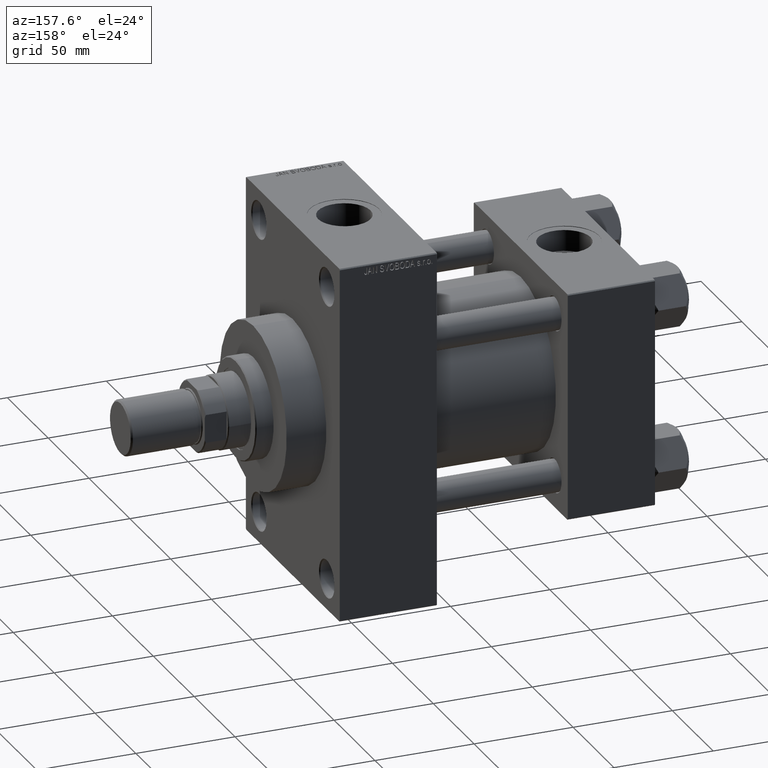
[diagram: clean part render]
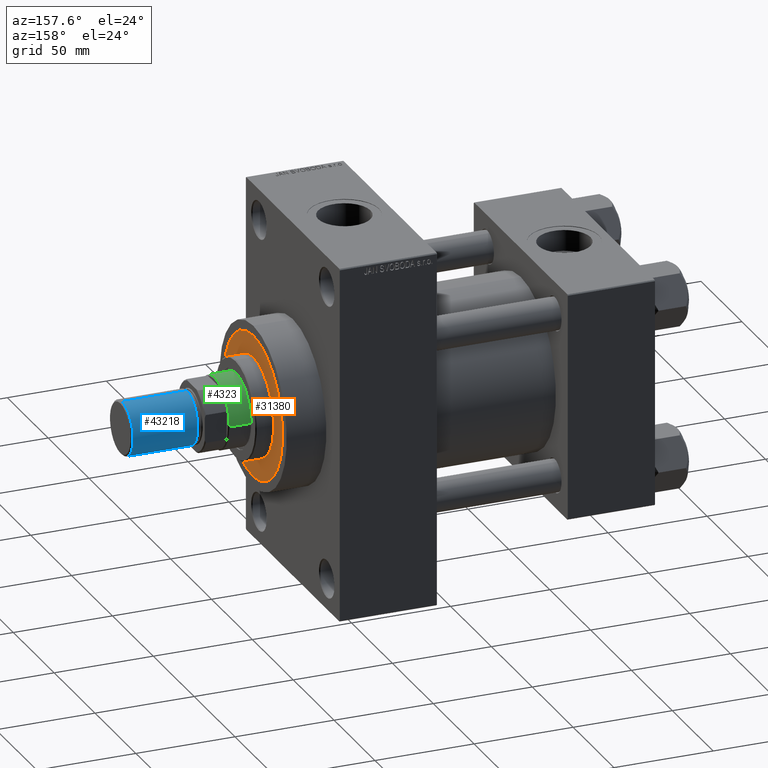
[diagram: same view with three faces highlighted in distinct colors, each labeled with its STEP entity id]
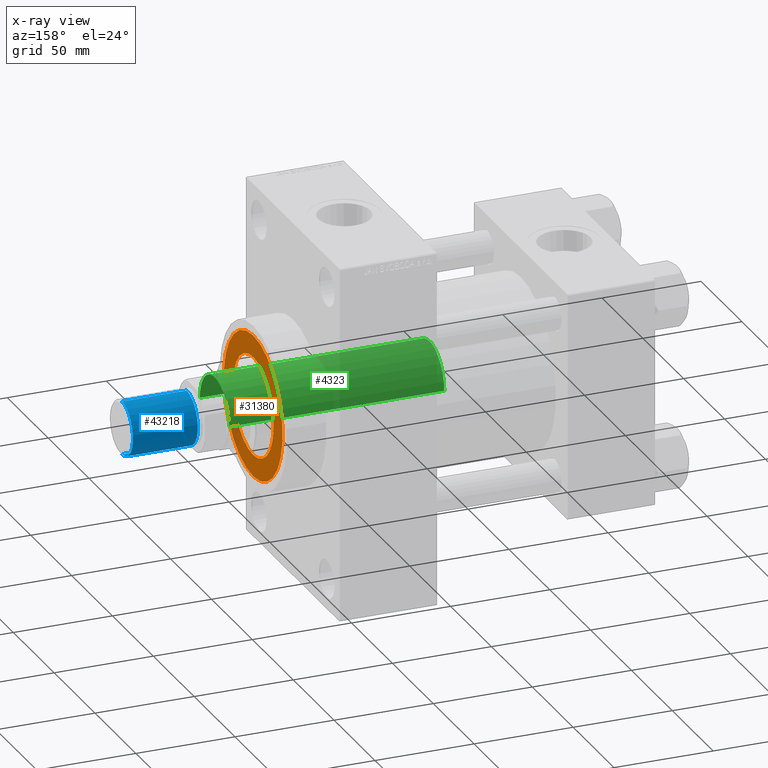
[diagram: x-ray of the same camera — body ghosted, the three highlighted faces saturated]
A machine part, auxiliary view with three faces highlighted in distinct colors.
The next image is the same camera in x-ray (body ghosted, the three faces saturated) — at least one of them is partly hidden behind the body in this view.
Their STEP definitions:

[orange] entity #31380 — the highlighted planar face has unit normal (1, -0, -0).
#1510 = FACE_BOUND ( 'NONE', #47403, .T. ) ;
#1616 = AXIS2_PLACEMENT_3D ( 'NONE', #18687, #7276, #10465 ) ;
#2077 = EDGE_LOOP ( 'NONE', ( #34125, #34149 ) ) ;
#2237 = EDGE_CURVE ( 'NONE', #43794, #43035, #3136, .T. ) ;
#3136 = CIRCLE ( 'NONE', #1616, 36.00000000000000000 ) ;
#3507 = EDGE_CURVE ( 'NONE', #43035, #43794, #33512, .T. ) ;
#6301 = DIRECTION ( 'NONE',  ( 0.000000000000000000, 0.000000000000000000, 1.000000000000000000 ) ) ;
#7276 = DIRECTION ( 'NONE',  ( 0.000000000000000000, 0.000000000000000000, 1.000000000000000000 ) ) ;
#8594 = CARTESIAN_POINT ( 'NONE',  ( 0.000000000000000000, 0.000000000000000000, 43.25999999999999801 ) ) ;
#9964 = DIRECTION ( 'NONE',  ( 1.000000000000000000, 0.000000000000000000, 0.000000000000000000 ) ) ;
#10465 = DIRECTION ( 'NONE',  ( 1.000000000000000000, 0.000000000000000000, 0.000000000000000000 ) ) ;
#11316 = EDGE_CURVE ( 'NONE', #44570, #37945, #15926, .T. ) ;
#12397 = CARTESIAN_POINT ( 'NONE',  ( 25.00000000000000000, 3.061616997868383043E-15, 43.25999999999999801 ) ) ;
#12479 = DIRECTION ( 'NONE',  ( 1.000000000000000000, 0.000000000000000000, -0.000000000000000000 ) ) ;
#14541 = AXIS2_PLACEMENT_3D ( 'NONE', #8594, #31937, #12479 ) ;
#15926 = CIRCLE ( 'NONE', #43137, 25.00000000000000000 ) ;
#16344 = PLANE ( 'NONE',  #14541 ) ;
#16673 = CARTESIAN_POINT ( 'NONE',  ( 36.00000000000000000, 4.408728476930470856E-15, 43.25999999999999801 ) ) ;
#16941 = EDGE_CURVE ( 'NONE', #37945, #44570, #35992, .T. ) ;
#17946 = CARTESIAN_POINT ( 'NONE',  ( 0.000000000000000000, 0.000000000000000000, 43.25999999999999801 ) ) ;
#18687 = CARTESIAN_POINT ( 'NONE',  ( 0.000000000000000000, 0.000000000000000000, 43.25999999999999801 ) ) ;
#23558 = DIRECTION ( 'NONE',  ( 1.000000000000000000, 0.000000000000000000, 0.000000000000000000 ) ) ;
#26102 = ORIENTED_EDGE ( 'NONE', *, *, #16941, .F. ) ;
#28220 = CARTESIAN_POINT ( 'NONE',  ( 0.000000000000000000, 0.000000000000000000, 43.25999999999999801 ) ) ;
#29630 = AXIS2_PLACEMENT_3D ( 'NONE', #28220, #39637, #42571 ) ;
#30393 = CARTESIAN_POINT ( 'NONE',  ( 0.000000000000000000, 0.000000000000000000, 43.25999999999999801 ) ) ;
#31380 = ADVANCED_FACE ( 'NONE', ( #1510, #31460 ), #16344, .T. ) ;
#31460 = FACE_OUTER_BOUND ( 'NONE', #2077, .T. ) ;
#31937 = DIRECTION ( 'NONE',  ( 0.000000000000000000, 0.000000000000000000, 1.000000000000000000 ) ) ;
#32023 = CARTESIAN_POINT ( 'NONE',  ( -36.00000000000000000, 0.000000000000000000, 43.25999999999999801 ) ) ;
#33512 = CIRCLE ( 'NONE', #29630, 36.00000000000000000 ) ;
#34029 = DIRECTION ( 'NONE',  ( 0.000000000000000000, 0.000000000000000000, 1.000000000000000000 ) ) ;
#34125 = ORIENTED_EDGE ( 'NONE', *, *, #3507, .T. ) ;
#34149 = ORIENTED_EDGE ( 'NONE', *, *, #2237, .T. ) ;
#35992 = CIRCLE ( 'NONE', #45326, 25.00000000000000000 ) ;
#37945 = VERTEX_POINT ( 'NONE', #46569 ) ;
#39637 = DIRECTION ( 'NONE',  ( 0.000000000000000000, 0.000000000000000000, 1.000000000000000000 ) ) ;
#42198 = ORIENTED_EDGE ( 'NONE', *, *, #11316, .F. ) ;
#42571 = DIRECTION ( 'NONE',  ( 1.000000000000000000, 0.000000000000000000, 0.000000000000000000 ) ) ;
#43035 = VERTEX_POINT ( 'NONE', #32023 ) ;
#43137 = AXIS2_PLACEMENT_3D ( 'NONE', #30393, #34029, #23558 ) ;
#43794 = VERTEX_POINT ( 'NONE', #16673 ) ;
#44570 = VERTEX_POINT ( 'NONE', #12397 ) ;
#45326 = AXIS2_PLACEMENT_3D ( 'NONE', #17946, #6301, #9964 ) ;
#46569 = CARTESIAN_POINT ( 'NONE',  ( -25.00000000000000000, 0.000000000000000000, 43.25999999999999801 ) ) ;
#47403 = EDGE_LOOP ( 'NONE', ( #26102, #42198 ) ) ;

[blue] entity #43218 — the highlighted cylindrical surface (edge-blend (fillet) strip) has radius 13.5 mm, axis along (1, -0, -0).
#1316 = CARTESIAN_POINT ( 'NONE',  ( 13.50000000000000000, 1.653273178848926867E-15, 0.7999999999999951594 ) ) ;
#2646 = CARTESIAN_POINT ( 'NONE',  ( -13.50000000000000000, 0.000000000000000000, 33.50000000000000000 ) ) ;
#5126 = VERTEX_POINT ( 'NONE', #42465 ) ;
#5925 = ORIENTED_EDGE ( 'NONE', *, *, #6640, .T. ) ;
#6640 = EDGE_CURVE ( 'NONE', #5126, #34829, #23199, .T. ) ;
#9098 = CARTESIAN_POINT ( 'NONE',  ( 0.000000000000000000, 0.000000000000000000, 33.50000000000000000 ) ) ;
#9596 = CARTESIAN_POINT ( 'NONE',  ( 0.000000000000000000, 0.000000000000000000, 0.7999999999999951594 ) ) ;
#9733 = CARTESIAN_POINT ( 'NONE',  ( -13.50000000000000000, 0.000000000000000000, 33.50000000000000000 ) ) ;
#12357 = AXIS2_PLACEMENT_3D ( 'NONE', #9596, #32458, #47285 ) ;
#13844 = DIRECTION ( 'NONE',  ( -0.000000000000000000, -0.000000000000000000, -1.000000000000000000 ) ) ;
#14119 = DIRECTION ( 'NONE',  ( 1.000000000000000000, 0.000000000000000000, 0.000000000000000000 ) ) ;
#15894 = DIRECTION ( 'NONE',  ( -0.000000000000000000, -0.000000000000000000, -1.000000000000000000 ) ) ;
#16841 = CYLINDRICAL_SURFACE ( 'NONE', #29371, 13.50000000000000000 ) ;
#17006 = ORIENTED_EDGE ( 'NONE', *, *, #37936, .T. ) ;
#17389 = EDGE_CURVE ( 'NONE', #21723, #46306, #32123, .T. ) ;
#18104 = VECTOR ( 'NONE', #13844, 1000.000000000000000 ) ;
#20263 = DIRECTION ( 'NONE',  ( -1.000000000000000000, 0.000000000000000000, 0.000000000000000000 ) ) ;
#21723 = VERTEX_POINT ( 'NONE', #9733 ) ;
#23199 = LINE ( 'NONE', #38049, #33616 ) ;
#25652 = CIRCLE ( 'NONE', #12357, 13.50000000000000000 ) ;
#26701 = ORIENTED_EDGE ( 'NONE', *, *, #17389, .F. ) ;
#28123 = CARTESIAN_POINT ( 'NONE',  ( -13.50000000000000000, 0.000000000000000000, 0.7999999999999951594 ) ) ;
#29371 = AXIS2_PLACEMENT_3D ( 'NONE', #9098, #31253, #20263 ) ;
#29482 = AXIS2_PLACEMENT_3D ( 'NONE', #36048, #35568, #14119 ) ;
#31253 = DIRECTION ( 'NONE',  ( -0.000000000000000000, -0.000000000000000000, -1.000000000000000000 ) ) ;
#32123 = LINE ( 'NONE', #2646, #18104 ) ;
#32458 = DIRECTION ( 'NONE',  ( -0.000000000000000000, -0.000000000000000000, 1.000000000000000000 ) ) ;
#32613 = EDGE_LOOP ( 'NONE', ( #40571, #5925, #17006, #26701 ) ) ;
#33616 = VECTOR ( 'NONE', #15894, 1000.000000000000000 ) ;
#34136 = CIRCLE ( 'NONE', #29482, 13.50000000000000000 ) ;
#34829 = VERTEX_POINT ( 'NONE', #1316 ) ;
#35568 = DIRECTION ( 'NONE',  ( 0.000000000000000000, 0.000000000000000000, 1.000000000000000000 ) ) ;
#36048 = CARTESIAN_POINT ( 'NONE',  ( 0.000000000000000000, 0.000000000000000000, 33.50000000000000000 ) ) ;
#36134 = EDGE_CURVE ( 'NONE', #5126, #21723, #34136, .T. ) ;
#37936 = EDGE_CURVE ( 'NONE', #34829, #46306, #25652, .T. ) ;
#38049 = CARTESIAN_POINT ( 'NONE',  ( 13.50000000000000000, 1.653273178848926867E-15, 33.50000000000000000 ) ) ;
#40571 = ORIENTED_EDGE ( 'NONE', *, *, #36134, .F. ) ;
#42465 = CARTESIAN_POINT ( 'NONE',  ( 13.50000000000000000, 1.653273178848926867E-15, 33.50000000000000000 ) ) ;
#43143 = FACE_OUTER_BOUND ( 'NONE', #32613, .T. ) ;
#43218 = ADVANCED_FACE ( 'NONE', ( #43143 ), #16841, .T. ) ;
#46306 = VERTEX_POINT ( 'NONE', #28123 ) ;
#47285 = DIRECTION ( 'NONE',  ( 1.000000000000000000, 0.000000000000000000, 0.000000000000000000 ) ) ;

[green] entity #4323 — the highlighted cylindrical surface (partial cylindrical patch) has radius 18 mm, axis along (-1, 0, 0).
#4323 = ADVANCED_FACE ( 'NONE', ( #27397 ), #42936, .T. ) ;
#4639 = VERTEX_POINT ( 'NONE', #35823 ) ;
#5043 = EDGE_CURVE ( 'NONE', #14605, #38156, #14884, .T. ) ;
#10440 = LINE ( 'NONE', #29893, #46990 ) ;
#11998 = CARTESIAN_POINT ( 'NONE',  ( 0.000000000000000000, 0.000000000000000000, 154.4999999999999716 ) ) ;
#12782 = CARTESIAN_POINT ( 'NONE',  ( 0.000000000000000000, 0.000000000000000000, 155.0000000000000000 ) ) ;
#14605 = VERTEX_POINT ( 'NONE', #41546 ) ;
#14884 = CIRCLE ( 'NONE', #38243, 18.00000000000000000 ) ;
#15949 = DIRECTION ( 'NONE',  ( 0.000000000000000000, 0.000000000000000000, 1.000000000000000000 ) ) ;
#16040 = ORIENTED_EDGE ( 'NONE', *, *, #5043, .T. ) ;
#17119 = DIRECTION ( 'NONE',  ( -0.000000000000000000, -0.000000000000000000, -1.000000000000000000 ) ) ;
#18522 = CIRCLE ( 'NONE', #23248, 18.00000000000000000 ) ;
#19343 = ORIENTED_EDGE ( 'NONE', *, *, #20963, .T. ) ;
#20335 = AXIS2_PLACEMENT_3D ( 'NONE', #12782, #17119, #43179 ) ;
#20788 = ORIENTED_EDGE ( 'NONE', *, *, #24061, .F. ) ;
#20963 = EDGE_CURVE ( 'NONE', #4639, #14605, #10440, .T. ) ;
#23163 = CARTESIAN_POINT ( 'NONE',  ( 18.00000000000000000, 2.204364238465235428E-15, 46.00000000000000000 ) ) ;
#23248 = AXIS2_PLACEMENT_3D ( 'NONE', #11998, #34875, #31235 ) ;
#23282 = ORIENTED_EDGE ( 'NONE', *, *, #45381, .T. ) ;
#24061 = EDGE_CURVE ( 'NONE', #27437, #38156, #37994, .T. ) ;
#27397 = FACE_OUTER_BOUND ( 'NONE', #46386, .T. ) ;
#27437 = VERTEX_POINT ( 'NONE', #30969 ) ;
#29741 = CARTESIAN_POINT ( 'NONE',  ( 18.00000000000000000, 2.204364238465235428E-15, 155.0000000000000000 ) ) ;
#29893 = CARTESIAN_POINT ( 'NONE',  ( -18.00000000000000000, 0.000000000000000000, 155.0000000000000000 ) ) ;
#30969 = CARTESIAN_POINT ( 'NONE',  ( 18.00000000000000000, 2.204364238465235428E-15, 154.4999999999999716 ) ) ;
#31235 = DIRECTION ( 'NONE',  ( 1.000000000000000000, 0.000000000000000000, 0.000000000000000000 ) ) ;
#33382 = DIRECTION ( 'NONE',  ( -0.000000000000000000, -0.000000000000000000, -1.000000000000000000 ) ) ;
#34467 = CARTESIAN_POINT ( 'NONE',  ( 0.000000000000000000, 0.000000000000000000, 46.00000000000000000 ) ) ;
#34875 = DIRECTION ( 'NONE',  ( 0.000000000000000000, 0.000000000000000000, -1.000000000000000000 ) ) ;
#35823 = CARTESIAN_POINT ( 'NONE',  ( -18.00000000000000000, 0.000000000000000000, 154.4999999999999716 ) ) ;
#37994 = LINE ( 'NONE', #29741, #43967 ) ;
#38156 = VERTEX_POINT ( 'NONE', #23163 ) ;
#38243 = AXIS2_PLACEMENT_3D ( 'NONE', #34467, #15949, #45646 ) ;
#40347 = DIRECTION ( 'NONE',  ( -0.000000000000000000, -0.000000000000000000, -1.000000000000000000 ) ) ;
#41546 = CARTESIAN_POINT ( 'NONE',  ( -18.00000000000000000, 0.000000000000000000, 46.00000000000000000 ) ) ;
#42936 = CYLINDRICAL_SURFACE ( 'NONE', #20335, 18.00000000000000000 ) ;
#43179 = DIRECTION ( 'NONE',  ( -1.000000000000000000, 0.000000000000000000, 0.000000000000000000 ) ) ;
#43967 = VECTOR ( 'NONE', #33382, 1000.000000000000000 ) ;
#45381 = EDGE_CURVE ( 'NONE', #27437, #4639, #18522, .T. ) ;
#45646 = DIRECTION ( 'NONE',  ( 1.000000000000000000, 0.000000000000000000, 0.000000000000000000 ) ) ;
#46386 = EDGE_LOOP ( 'NONE', ( #20788, #23282, #19343, #16040 ) ) ;
#46990 = VECTOR ( 'NONE', #40347, 1000.000000000000000 ) ;